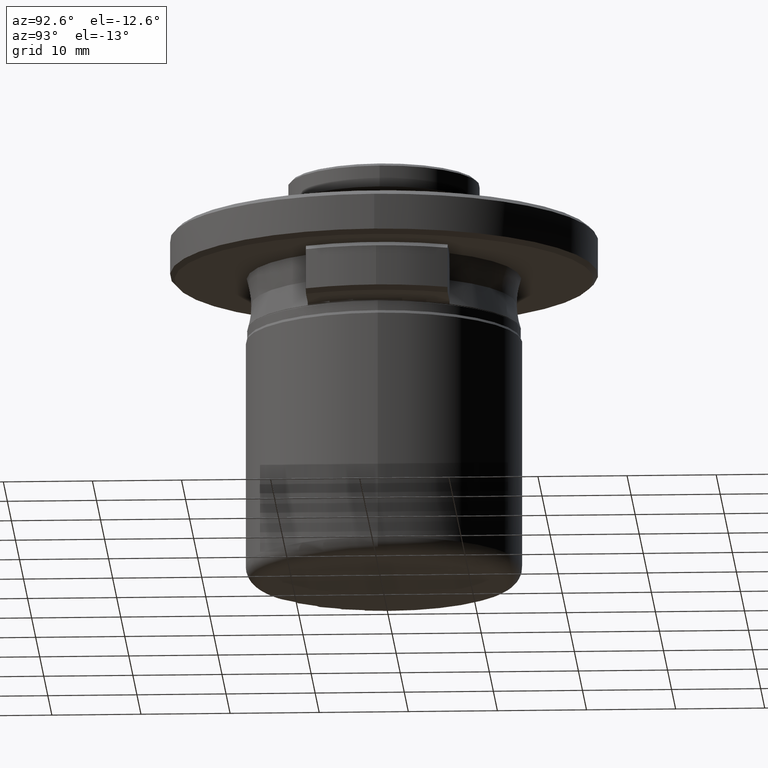
[diagram: clean part render]
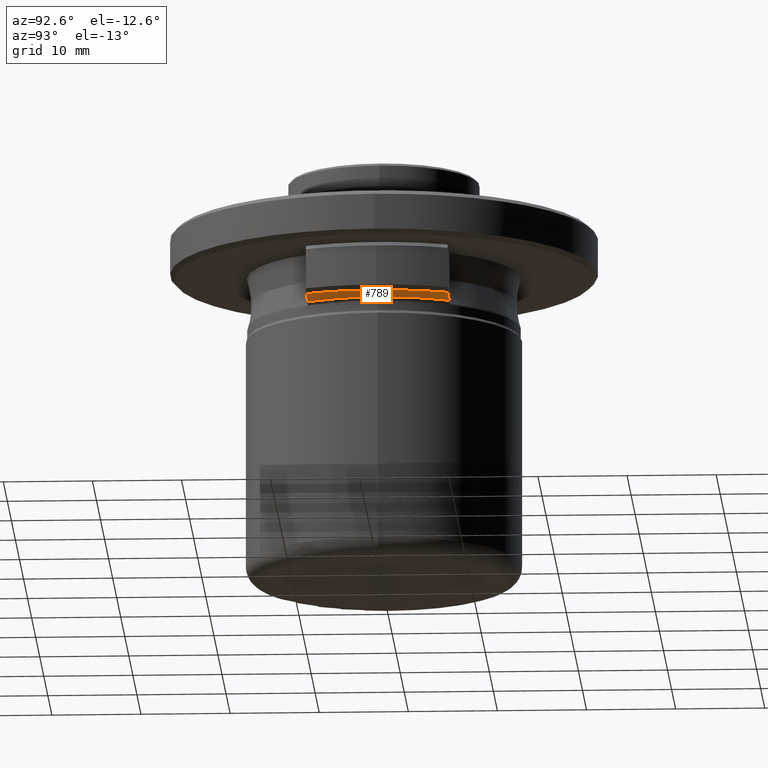
[diagram: same view with one face highlighted and labeled with its STEP entity id]
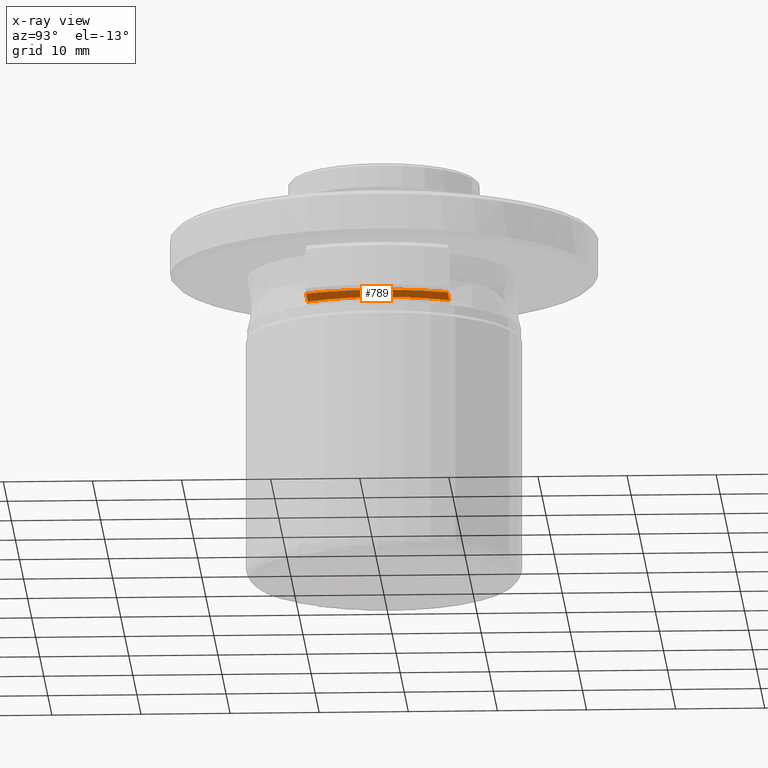
[diagram: x-ray of the same camera — body ghosted, the highlighted face saturated]
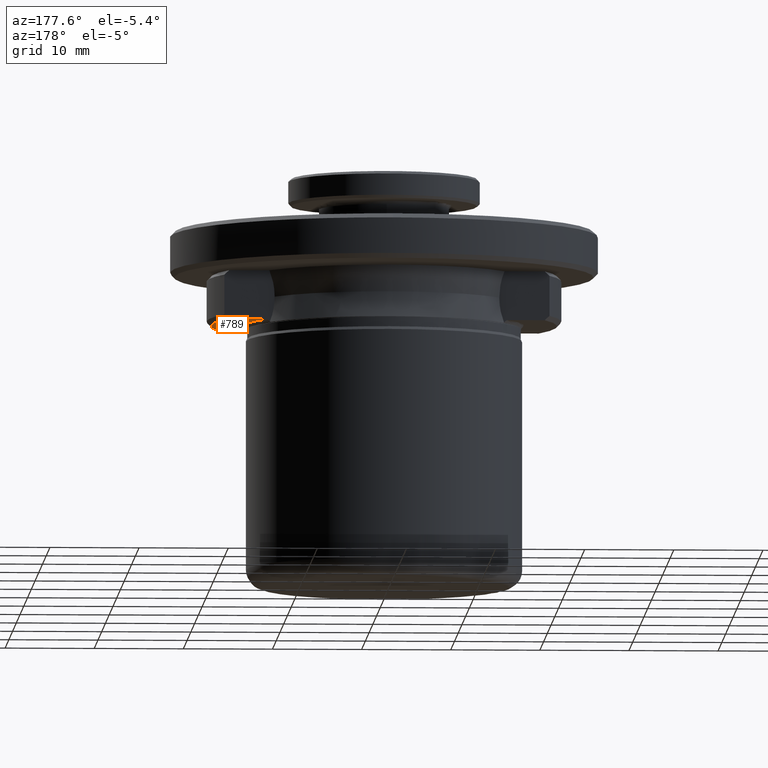
[diagram: same view with one face highlighted and labeled with its STEP entity id]
A machine part, auxiliary view. The second image highlights one B-rep face of the part: STEP entity #789.
The next image is the same camera in x-ray: the body ghosted, the highlighted face saturated — about 0% of this face is hidden behind the body in this view.
A second angle (auxiliary view) of the same face is appended — the face is thin or edge-on in the first view.
In plain terms, the highlighted planar face has unit normal (0, 0, 1).
Its self-contained STEP definition (entity closure, byte-faithful):
#23 = ORIENTED_EDGE ( 'NONE', *, *, #1407, .F. ) ;
#55 = CARTESIAN_POINT ( 'NONE',  ( 19.39999999999998800, 0.0000000000000000000, 1.938485614999985200 ) ) ;
#111 = VECTOR ( 'NONE', #1255, 1000.000000000000000 ) ;
#185 = CIRCLE ( 'NONE', #1497, 19.39999999999998800 ) ;
#186 = CARTESIAN_POINT ( 'NONE',  ( 17.69625666672918000, 7.950000000031228500, 1.938485615393130200 ) ) ;
#208 = DIRECTION ( 'NONE',  ( 0.0000000000000000000, -0.0000000000000000000, 1.000000000000000000 ) ) ;
#215 = CARTESIAN_POINT ( 'NONE',  ( 15.37753341250000000, -7.950000000000000200, 1.938485615938671000 ) ) ;
#261 = CARTESIAN_POINT ( 'NONE',  ( 0.0000000000000000000, 0.0000000000000000000, 1.938485614999985200 ) ) ;
#298 = VERTEX_POINT ( 'NONE', #494 ) ;
#368 = CIRCLE ( 'NONE', #683, 19.39999999999998800 ) ;
#420 = EDGE_CURVE ( 'NONE', #1160, #298, #1337, .T. ) ;
#426 = DIRECTION ( 'NONE',  ( 1.000000000000000000, 0.0000000000000000000, 0.0000000000000000000 ) ) ;
#458 = EDGE_CURVE ( 'NONE', #1470, #1035, #1289, .T. ) ;
#469 = CARTESIAN_POINT ( 'NONE',  ( 13.56150097100000100, -7.950000000000000200, 1.938485614999999800 ) ) ;
#494 = CARTESIAN_POINT ( 'NONE',  ( 13.59632303333315700, 7.950000000000000200, 1.938485614889212700 ) ) ;
#518 = DIRECTION ( 'NONE',  ( -1.000000000000000000, -0.0000000000000000000, -0.0000000000000000000 ) ) ;
#520 = CARTESIAN_POINT ( 'NONE',  ( 13.59632303223156100, -7.950000000000000200, 1.938485614889212700 ) ) ;
#619 = ORIENTED_EDGE ( 'NONE', *, *, #420, .F. ) ;
#630 = CARTESIAN_POINT ( 'NONE',  ( 0.0000000000000000000, 3.106935668914116000E-018, 1.938485614889212700 ) ) ;
#632 = FACE_OUTER_BOUND ( 'NONE', #1747, .T. ) ;
#683 = AXIS2_PLACEMENT_3D ( 'NONE', #1098, #208, #1242 ) ;
#710 = ORIENTED_EDGE ( 'NONE', *, *, #1143, .T. ) ;
#750 = AXIS2_PLACEMENT_3D ( 'NONE', #630, #1657, #783 ) ;
#783 = DIRECTION ( 'NONE',  ( 0.0000000000000000000, -1.000000000000000000, 1.376764663460805000E-017 ) ) ;
#789 = ADVANCED_FACE ( 'NONE', ( #632 ), #1633, .F. ) ;
#901 = DIRECTION ( 'NONE',  ( 1.000000000000000000, 0.0000000000000000000, 0.0000000000000000000 ) ) ;
#949 = VECTOR ( 'NONE', #518, 1000.000000000000000 ) ;
#952 = CARTESIAN_POINT ( 'NONE',  ( 16.49816151650000200, 7.950000000000000200, 1.938485614999999800 ) ) ;
#970 = EDGE_CURVE ( 'NONE', #1470, #979, #368, .T. ) ;
#979 = VERTEX_POINT ( 'NONE', #55 ) ;
#1035 = VERTEX_POINT ( 'NONE', #520 ) ;
#1036 = ORIENTED_EDGE ( 'NONE', *, *, #458, .T. ) ;
#1098 = CARTESIAN_POINT ( 'NONE',  ( 0.0000000000000000000, 0.0000000000000000000, 1.938485614999985200 ) ) ;
#1143 = EDGE_CURVE ( 'NONE', #1035, #298, #1299, .T. ) ;
#1160 = VERTEX_POINT ( 'NONE', #186 ) ;
#1242 = DIRECTION ( 'NONE',  ( 1.000000000000000000, 0.0000000000000000000, 0.0000000000000000000 ) ) ;
#1255 = DIRECTION ( 'NONE',  ( -1.000000000000000000, 0.0000000000000000000, 0.0000000000000000000 ) ) ;
#1289 = LINE ( 'NONE', #215, #111 ) ;
#1291 = DIRECTION ( 'NONE',  ( 0.0000000000000000000, -0.0000000000000000000, 1.000000000000000000 ) ) ;
#1299 = CIRCLE ( 'NONE', #750, 15.75000000014701800 ) ;
#1337 = LINE ( 'NONE', #952, #949 ) ;
#1352 = ORIENTED_EDGE ( 'NONE', *, *, #970, .F. ) ;
#1404 = AXIS2_PLACEMENT_3D ( 'NONE', #469, #1782, #901 ) ;
#1407 = EDGE_CURVE ( 'NONE', #979, #1160, #185, .T. ) ;
#1448 = CARTESIAN_POINT ( 'NONE',  ( 17.69625666640350300, -7.950000000000000200, 1.938485614999992500 ) ) ;
#1470 = VERTEX_POINT ( 'NONE', #1448 ) ;
#1497 = AXIS2_PLACEMENT_3D ( 'NONE', #261, #1291, #426 ) ;
#1633 = PLANE ( 'NONE',  #1404 ) ;
#1657 = DIRECTION ( 'NONE',  ( -0.0000000000000000000, 7.062286934231402900E-018, 1.000000000000000000 ) ) ;
#1747 = EDGE_LOOP ( 'NONE', ( #1036, #710, #619, #23, #1352 ) ) ;
#1782 = DIRECTION ( 'NONE',  ( 0.0000000000000000000, 0.0000000000000000000, 1.000000000000000000 ) ) ;